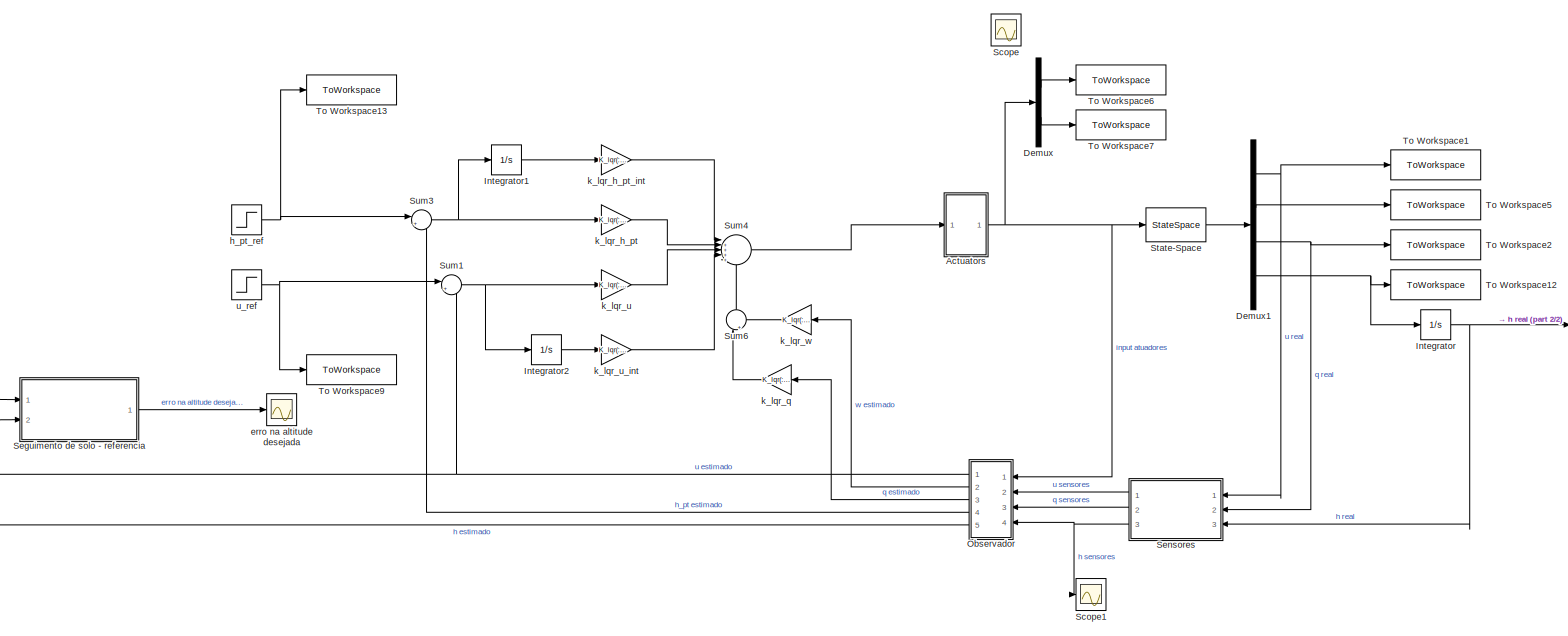
[diagram: root canvas - part 1/2, most of the canvas]
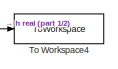
[diagram: root canvas - part 2/2, middle right region]
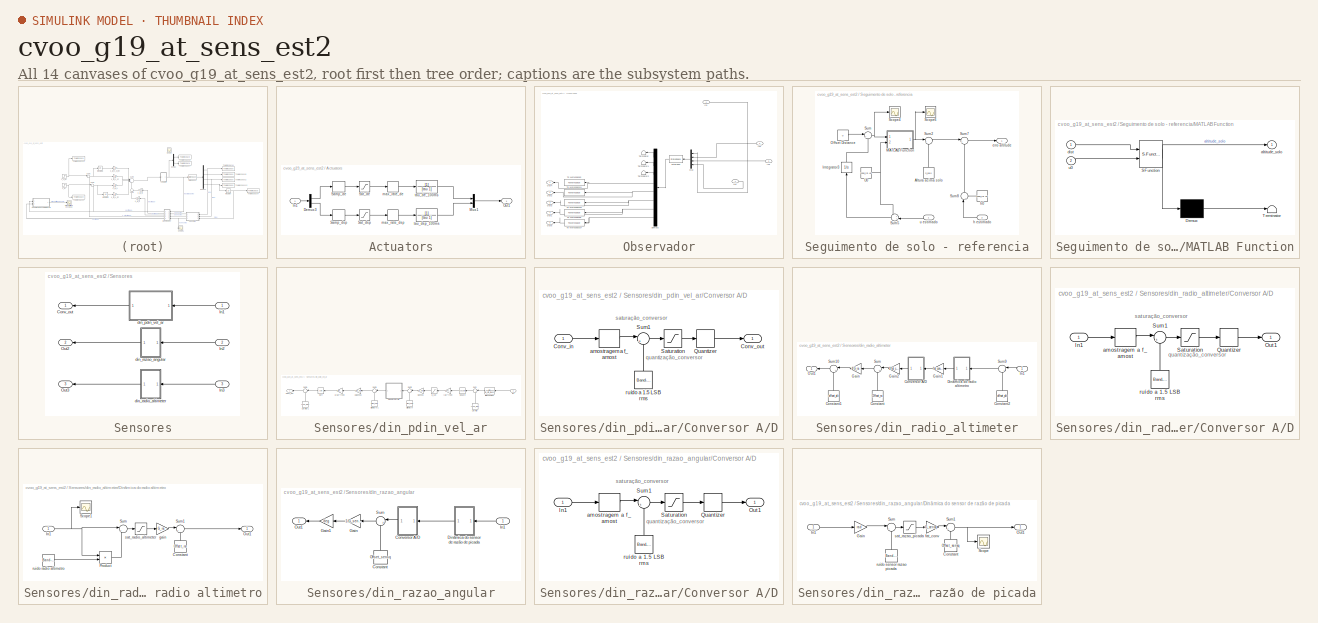
[diagram: thumbnail index - all 14 canvases of the model, root first then tree order]
MODEL cvoo_g19_at_sens_est2
KIND model
BLOCK [SubSystem] Actuators
  Ports = [1, 1]
  RequestExecContextInheritance = off
  SID = 88
BLOCK [RateLimiter] Actuators/ max_rate_de
  FallingSlewLimit = -vel_max_at*deg
  RisingSlewLimit = vel_max_at*deg
  SID = 90
  SampleTimeMode = inherited
BLOCK [RateLimiter] Actuators/ max_rate_dsp
  FallingSlewLimit = -vel_max_at*deg
  RisingSlewLimit = vel_max_at*deg
  SID = 91
  SampleTimeMode = inherited
BLOCK [Demux] Actuators/Demux3
  Outputs = 2
  Ports = [1, 2]
  SID = 92
BLOCK [Inport] Actuators/In1
  SID = 89
BLOCK [Mux] Actuators/Mux1
  DisplayOption = bar
  Inputs = 2
  Ports = [2, 1]
  SID = 93
BLOCK [Outport] Actuators/Out1
  SID = 104
BLOCK [ZeroOrderHold] Actuators/Samp_de
  SID = 94
  SampleTime = 1/f_amost
BLOCK [ZeroOrderHold] Actuators/Samp_dsp
  SID = 95
  SampleTime = 1/f_amost
BLOCK [Saturate] Actuators/Sat_de
  LowerLimit = max_deflec.demin
  SID = 96
  UpperLimit = max_deflec.demax
BLOCK [Saturate] Actuators/Sat_dsp
  LowerLimit = 0
  SID = 97
  UpperLimit = max_deflec.spmax
BLOCK [TransferFcn] Actuators/tau_de_100ms
  Denominator = [tau 1]
  SID = 100
BLOCK [TransferFcn] Actuators/tau_dsp_100ms
  Denominator = [tau 1]
  SID = 101
BLOCK [Demux] Demux
  Outputs = 2
  Ports = [1, 2]
  SID = 48
BLOCK [Demux] Demux1
  Ports = [1, 4]
  SID = 3
BLOCK [Integrator] Integrator
  Ports = [1, 1]
  SID = 60
BLOCK [Integrator] Integrator1
  Ports = [1, 1]
  SID = 84
BLOCK [Integrator] Integrator2
  Ports = [1, 1]
  SID = 86
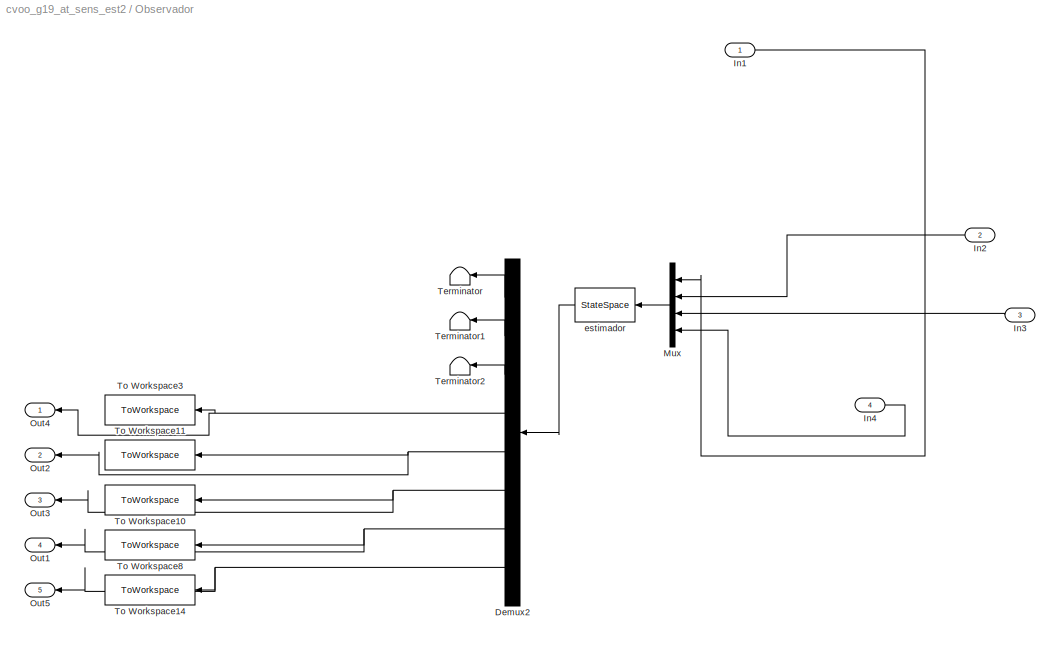
BLOCK [SubSystem] Observador
  NameLocation = top
  Ports = [4, 5]
  RequestExecContextInheritance = off
  SID = 330
BLOCK [Demux] Observador/Demux2
  NameLocation = top
  Outputs = 8
  Ports = [1, 8]
  SID = 234
BLOCK [Inport] Observador/In1
  SID = 331
BLOCK [Inport] Observador/In2
  Port = 2
  SID = 332
BLOCK [Inport] Observador/In3
  Port = 3
  SID = 333
BLOCK [Inport] Observador/In4
  Port = 4
  SID = 334
BLOCK [Mux] Observador/Mux
  DisplayOption = bar
  NameLocation = top
  Ports = [4, 1]
  SID = 233
BLOCK [Outport] Observador/Out1
  NameLocation = top
  Port = 4
  SID = 335
BLOCK [Outport] Observador/Out2
  Port = 2
  SID = 336
BLOCK [Outport] Observador/Out3
  Port = 3
  SID = 337
BLOCK [Outport] Observador/Out4
  NameLocation = top
  SID = 338
BLOCK [Outport] Observador/Out5
  NameLocation = top
  Port = 5
  SID = 339
BLOCK [Terminator] Observador/Terminator
  NameLocation = top
  SID = 240
BLOCK [Terminator] Observador/Terminator1
  NameLocation = top
  SID = 241
BLOCK [Terminator] Observador/Terminator2
  NameLocation = top
  SID = 242
BLOCK [ToWorkspace] Observador/To Workspace10
  FixptAsFi = on
  MaxDataPoints = inf
  NameLocation = top
  Ports = [1]
  SID = 237
  SampleTime = -1
  VariableName = q_e
BLOCK [ToWorkspace] Observador/To Workspace11
  FixptAsFi = on
  MaxDataPoints = inf
  NameLocation = top
  Ports = [1]
  SID = 238
  SampleTime = -1
  VariableName = w_e
BLOCK [ToWorkspace] Observador/To Workspace14
  FixptAsFi = on
  MaxDataPoints = inf
  NameLocation = top
  Ports = [1]
  SID = 239
  SampleTime = -1
  VariableName = h_e
BLOCK [ToWorkspace] Observador/To Workspace3
  FixptAsFi = on
  MaxDataPoints = inf
  NameLocation = top
  Ports = [1]
  SID = 235
  SampleTime = -1
  VariableName = u_e
BLOCK [ToWorkspace] Observador/To Workspace8
  FixptAsFi = on
  MaxDataPoints = inf
  NameLocation = top
  Ports = [1]
  SID = 236
  SampleTime = -1
  VariableName = h_pt_e
BLOCK [StateSpace] Observador/estimador
  A = ae
  B = be
  C = ce
  D = de
  InitialCondition = x0_e
  NameLocation = top
  Ports = [1, 1]
  SID = 232
BLOCK [Scope] Scope
  Floating = off
  IOType = viewer
  NumInputPorts = 1
  Ports = []
  SID = 46
  ScopeSpecificationString = Simulink.scopes.TimeScopeBlockCfg('CurrentConfiguration', extmgr.ConfigurationSet(extmgr.Configuration('Core','General UI',true),extmgr.Configuration('Core','Source UI',true),extmgr.Configuration('Sources','WiredSimulink',true),extmgr.Configuration('Visuals','Time Domain',true,'SerializedDisplays',{struct('MinYLimReal','-0.52541','MaxYLimReal','2.48927','YLabelReal','','MinYLimMag','0.00000','MaxY...<+1359ch>
BLOCK [Scope] Scope1
  Floating = off
  NumInputPorts = 1
  Ports = [1]
  SID = 368
  ScopeSpecificationString = Simulink.scopes.TimeScopeBlockCfg('CurrentConfiguration', extmgr.ConfigurationSet(extmgr.Configuration('Core','General UI',true),extmgr.Configuration('Core','Source UI',true),extmgr.Configuration('Sources','WiredSimulink',true,'DataLoggingVariableName','ScopeData1'),extmgr.Configuration('Visuals','Time Domain',true,'SerializedDisplays',{struct('MinYLimReal','-93.52743','MaxYLimReal','23.81425','YL...<+1375ch>
BLOCK [SubSystem] Seguimento de solo - referencia
  Ports = [2, 1]
  RequestExecContextInheritance = off
  SID = 347
BLOCK [Constant] Seguimento de solo - referencia/Altura acima solo
  NameLocation = right
  SID = 219
  Value = h_solo
BLOCK [Integrator] Seguimento de solo - referencia/Integrator3
  NameLocation = right
  Ports = [1, 1]
  SID = 213
BLOCK [SubSystem] Seguimento de solo - referencia/MATLAB Function
  ErrorFcn = Stateflow.Translate.translate
  PermitHierarchicalResolution = ExplicitOnly
  Ports = [2, 1]
  RequestExecContextInheritance = off
  SFBlockType = MATLAB Function
  SID = 211
  TreatAsAtomicUnit = on
BLOCK [Demux] Seguimento de solo - referencia/MATLAB Function/ Demux 
  Outputs = 1
  Ports = [1, 1]
  SID = 211::33
BLOCK [S-Function] Seguimento de solo - referencia/MATLAB Function/ SFunction 
  EnableBusSupport = on
  FunctionName = sf_sfun
  PortCounts = [2 2]
  Ports = [2, 2]
  SFcnIsStateOwnerBlock = off
  SFunctionDeploymentMode = off
  SID = 211::32
  Tag = Stateflow S-Function 2
BLOCK [Terminator] Seguimento de solo - referencia/MATLAB Function/ Terminator 
  SID = 211::34
BLOCK [Outport] Seguimento de solo - referencia/MATLAB Function/altitude_solo
  SID = 211::5
BLOCK [Inport] Seguimento de solo - referencia/MATLAB Function/dist
  SID = 211::1
BLOCK [Inport] Seguimento de solo - referencia/MATLAB Function/u0
  Port = 2
  SID = 211::25
BLOCK [Constant] Seguimento de solo - referencia/Offset Distance
  SID = 212
  Value = 0
BLOCK [Scope] Seguimento de solo - referencia/Scope4
  Floating = off
  NumInputPorts = 1
  Ports = [1]
  SID = 224
  ScopeSpecificationString = Simulink.scopes.TimeScopeBlockCfg('CurrentConfiguration', extmgr.ConfigurationSet(extmgr.Configuration('Core','General UI',true),extmgr.Configuration('Core','Source UI',true),extmgr.Configuration('Sources','WiredSimulink',true,'DataLoggingVariableName','ScopeData2'),extmgr.Configuration('Visuals','Time Domain',true,'SerializedDisplays',{struct('MinYLimReal','-437.03217','MaxYLimReal','3933.28956',...<+1380ch>
BLOCK [Scope] Seguimento de solo - referencia/Scope6
  Floating = off
  NumInputPorts = 1
  Ports = [1]
  SID = 229
  ScopeSpecificationString = Simulink.scopes.TimeScopeBlockCfg('CurrentConfiguration', extmgr.ConfigurationSet(extmgr.Configuration('Core','General UI',true),extmgr.Configuration('Core','Source UI',true),extmgr.Configuration('Sources','WiredSimulink',true,'DataLoggingVariableName','ScopeData4'),extmgr.Configuration('Visuals','Time Domain',true,'SerializedDisplays',{struct('MinYLimReal','-21.25299','MaxYLimReal','191.27687','Y...<+1417ch>
BLOCK [Sum] Seguimento de solo - referencia/Sum
  Inputs = |++
  Ports = [2, 1]
  SID = 222
BLOCK [Sum] Seguimento de solo - referencia/Sum2
  Inputs = |++
  Ports = [2, 1]
  SID = 217
BLOCK [Sum] Seguimento de solo - referencia/Sum5
  Inputs = ++|
  NameLocation = top
  Ports = [2, 1]
  SID = 225
BLOCK [Sum] Seguimento de solo - referencia/Sum7
  Inputs = |+-
  Ports = [2, 1]
  SID = 226
BLOCK [Sum] Seguimento de solo - referencia/Sum8
  Inputs = |++
  NameLocation = right
  Ports = [2, 1]
  SID = 231
BLOCK [Constant] Seguimento de solo - referencia/U0
  SID = 216
  Value = cond_ini.u0
BLOCK [Outport] Seguimento de solo - referencia/erro altitude
  SID = 350
BLOCK [Inport] Seguimento de solo - referencia/h estimado
  Port = 2
  SID = 349
BLOCK [Constant] Seguimento de solo - referencia/h0
  NameLocation = top
  SID = 230
  Value = cond_ini.h0
BLOCK [Inport] Seguimento de solo - referencia/u estimado
  NameLocation = top
  SID = 348
BLOCK [SubSystem] Sensores
  NameLocation = top
  Ports = [3, 3]
  RequestExecContextInheritance = off
  SID = 340
BLOCK [Outport] Sensores/Conv_out
  SID = 344
BLOCK [Inport] Sensores/In1
  NameLocation = top
  SID = 341
BLOCK [Inport] Sensores/In2
  NameLocation = top
  Port = 2
  SID = 342
BLOCK [Inport] Sensores/In3
  NameLocation = top
  Port = 3
  SID = 343
BLOCK [Outport] Sensores/Out2
  Port = 2
  SID = 345
BLOCK [Outport] Sensores/Out3
  Port = 3
  SID = 346
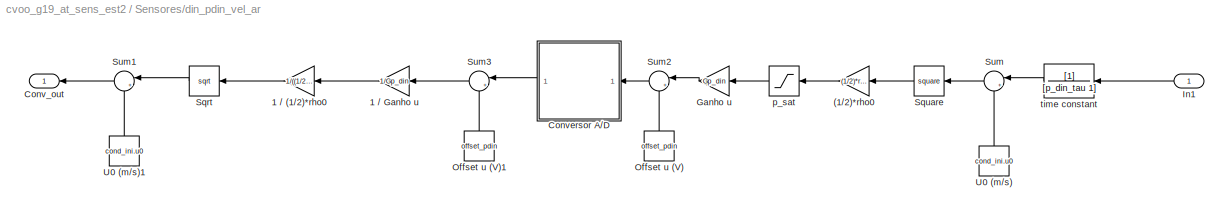
BLOCK [SubSystem] Sensores/din_pdin_vel_ar
  NameLocation = top
  Ports = [1, 1]
  RequestExecContextInheritance = off
  SID = 187
BLOCK [TransferFcn] Sensores/din_pdin_vel_ar/ time constant
  Denominator = [p_din_tau 1]
  NameLocation = top
  SID = 184
BLOCK [Gain] Sensores/din_pdin_vel_ar/(1//2)*rho0
  Gain = (1/2)*rho0
  NameLocation = top
  SID = 170
BLOCK [Gain] Sensores/din_pdin_vel_ar/1 // (1//2)*rho0
  Gain = 1/((1/2)*rho0)
  NameLocation = top
  SID = 201
BLOCK [Gain] Sensores/din_pdin_vel_ar/1 // Ganho u
  Gain = 1/Gp_din
  NameLocation = top
  SID = 202
BLOCK [Outport] Sensores/din_pdin_vel_ar/Conv_out
  NameLocation = top
  SID = 189
BLOCK [SubSystem] Sensores/din_pdin_vel_ar/Conversor A//D
  NameLocation = top
  Ports = [1, 1]
  RequestExecContextInheritance = off
  SID = 190
BLOCK [Inport] Sensores/din_pdin_vel_ar/Conversor A//D/Conv_in
  SID = 191
BLOCK [Outport] Sensores/din_pdin_vel_ar/Conversor A//D/Conv_out
  SID = 198
BLOCK [Quantizer] Sensores/din_pdin_vel_ar/Conversor A//D/Quantizer
  QuantizationInterval = fat_quant
  SID = 192
BLOCK [Saturate] Sensores/din_pdin_vel_ar/Conversor A//D/Saturation
  LowerLimit = conv_min
  SID = 193
  UpperLimit = conv_max
BLOCK [Sum] Sensores/din_pdin_vel_ar/Conversor A//D/Sum1
  Inputs = |++
  Ports = [2, 1]
  SID = 195
BLOCK [ZeroOrderHold] Sensores/din_pdin_vel_ar/Conversor A//D/amostragem a f_amost
  SID = 196
  SampleTime = 1/f_amost
BLOCK [Reference] Sensores/din_pdin_vel_ar/Conversor A//D/ruído a 1.5 LSB rms  REF=simulink/Sources/Band-Limited\nWhite Noise
  Cov = [conv_rms^2/f_amost]
  NameLocation = right
  Ports = [0, 1]
  RTWMemSecDataConstants = Inherit from model
  RTWMemSecDataInternal = Inherit from model
  RTWMemSecDataParameters = Inherit from model
  RTWMemSecFuncExecute = Inherit from model
  RTWMemSecFuncInitTerm = Inherit from model
  SID = 197
  SourceBlock = simulink/Sources/Band-Limited\nWhite Noise
  SourceProductBaseCode = SL
  SourceType = Band-Limited White Noise.
  Ts = 1/f_amost
  VectorParams1D = on
  seed = [23341]
BLOCK [Gain] Sensores/din_pdin_vel_ar/Ganho u
  Gain = Gp_din
  NameLocation = top
  SID = 179
BLOCK [Inport] Sensores/din_pdin_vel_ar/In1
  NameLocation = top
  SID = 188
BLOCK [Constant] Sensores/din_pdin_vel_ar/Offset u (V)
  NameLocation = right
  SID = 180
  Value = offset_pdin
BLOCK [Constant] Sensores/din_pdin_vel_ar/Offset u (V)1
  NameLocation = right
  SID = 203
  Value = offset_pdin
BLOCK [Sqrt] Sensores/din_pdin_vel_ar/Sqrt
  NameLocation = top
  SID = 204
BLOCK [Math] Sensores/din_pdin_vel_ar/Square
  NameLocation = top
  Operator = square
  Ports = [1, 1]
  SID = 181
  SignedPower = on
BLOCK [Sum] Sensores/din_pdin_vel_ar/Sum
  Inputs = |++
  NameLocation = top
  Ports = [2, 1]
  SID = 182
BLOCK [Sum] Sensores/din_pdin_vel_ar/Sum1
  Inputs = |+-
  NameLocation = top
  Ports = [2, 1]
  SID = 205
BLOCK [Sum] Sensores/din_pdin_vel_ar/Sum2
  Inputs = |++
  NameLocation = top
  Ports = [2, 1]
  SID = 183
BLOCK [Sum] Sensores/din_pdin_vel_ar/Sum3
  Inputs = |+-
  NameLocation = top
  Ports = [2, 1]
  SID = 206
BLOCK [Constant] Sensores/din_pdin_vel_ar/U0 (m//s)
  NameLocation = right
  SID = 185
  Value = cond_ini.u0
BLOCK [Constant] Sensores/din_pdin_vel_ar/U0 (m//s)1
  NameLocation = right
  SID = 207
  Value = cond_ini.u0
BLOCK [Saturate] Sensores/din_pdin_vel_ar/p_sat
  LowerLimit = pdin_min
  NameLocation = top
  SID = 186
  UpperLimit = pdin_max
BLOCK [SubSystem] Sensores/din_radio_altimeter
  Ports = [1, 1]
  RequestExecContextInheritance = off
  SID = 273
BLOCK [Constant] Sensores/din_radio_altimeter/Constant
  NameLocation = right
  SID = 275
  Value = Offset_ra
BLOCK [Constant] Sensores/din_radio_altimeter/Constant1
  NameLocation = right
  SID = 311
  Value = offset_alt
BLOCK [Constant] Sensores/din_radio_altimeter/Constant2
  NameLocation = right
  SID = 310
  Value = offset_alt
BLOCK [SubSystem] Sensores/din_radio_altimeter/Conversor A//D
  NameLocation = top
  Ports = [1, 1]
  RequestExecContextInheritance = off
  SID = 276
BLOCK [Inport] Sensores/din_radio_altimeter/Conversor A//D/In1
  SID = 277
BLOCK [Outport] Sensores/din_radio_altimeter/Conversor A//D/Out1
  SID = 284
BLOCK [Quantizer] Sensores/din_radio_altimeter/Conversor A//D/Quantizer
  QuantizationInterval = fat_quant
  SID = 278
BLOCK [Saturate] Sensores/din_radio_altimeter/Conversor A//D/Saturation
  LowerLimit = conv_min
  SID = 279
  UpperLimit = conv_max
BLOCK [Sum] Sensores/din_radio_altimeter/Conversor A//D/Sum1
  Inputs = |++
  Ports = [2, 1]
  SID = 281
BLOCK [ZeroOrderHold] Sensores/din_radio_altimeter/Conversor A//D/amostragem a f_amost
  SID = 282
  SampleTime = 1/f_amost
BLOCK [Reference] Sensores/din_radio_altimeter/Conversor A//D/ruído a 1.5 LSB rms  REF=simulink/Sources/Band-Limited\nWhite Noise
  Cov = [conv_rms^2/f_amost]
  NameLocation = right
  Ports = [0, 1]
  RTWMemSecDataConstants = Inherit from model
  RTWMemSecDataInternal = Inherit from model
  RTWMemSecDataParameters = Inherit from model
  RTWMemSecFuncExecute = Inherit from model
  RTWMemSecFuncInitTerm = Inherit from model
  SID = 283
  SourceBlock = simulink/Sources/Band-Limited\nWhite Noise
  SourceProductBaseCode = SL
  SourceType = Band-Limited White Noise.
  Ts = 1/f_amost
  VectorParams1D = on
  seed = [23341]
BLOCK [SubSystem] Sensores/din_radio_altimeter/Dinâmica do radio altimetro
  Ports = [1, 1]
  RequestExecContextInheritance = off
  SID = 287
BLOCK [Constant] Sensores/din_radio_altimeter/Dinâmica do radio altimetro/Constant
  NameLocation = right
  SID = 289
  Value = Offset_ra
BLOCK [Inport] Sensores/din_radio_altimeter/Dinâmica do radio altimetro/In1
  SID = 288
BLOCK [Outport] Sensores/din_radio_altimeter/Dinâmica do radio altimetro/Out1
  SID = 295
BLOCK [Product] Sensores/din_radio_altimeter/Dinâmica do radio altimetro/Product
  Ports = [2, 1]
  SID = 370
BLOCK [Scope] Sensores/din_radio_altimeter/Dinâmica do radio altimetro/Scope1
  Floating = off
  NumInputPorts = 1
  Ports = [1]
  SID = 306
  ScopeSpecificationString = Simulink.scopes.TimeScopeBlockCfg('CurrentConfiguration', extmgr.ConfigurationSet(extmgr.Configuration('Core','General UI',true),extmgr.Configuration('Core','Source UI',true),extmgr.Configuration('Sources','WiredSimulink',true,'DataLoggingVariableName','ScopeData6'),extmgr.Configuration('Visuals','Time Domain',true,'SerializedDisplays',{struct('MinYLimReal','112.81721','MaxYLimReal','209.79696','Y...<+1376ch>
BLOCK [Sum] Sensores/din_radio_altimeter/Dinâmica do radio altimetro/Sum
  Inputs = |++
  Ports = [2, 1]
  SID = 290
BLOCK [Sum] Sensores/din_radio_altimeter/Dinâmica do radio altimetro/Sum1
  Inputs = |++
  Ports = [2, 1]
  SID = 291
BLOCK [Gain] Sensores/din_radio_altimeter/Dinâmica do radio altimetro/gain
  Gain = G_ra
  SID = 292
BLOCK [Reference] Sensores/din_radio_altimeter/Dinâmica do radio altimetro/ruido radio altimetro  REF=simulink/Sources/Band-Limited\nWhite Noise
  Cov = [ra_rms^2/f_amost]
  Ports = [0, 1]
  RTWMemSecDataConstants = Inherit from model
  RTWMemSecDataInternal = Inherit from model
  RTWMemSecDataParameters = Inherit from model
  RTWMemSecFuncExecute = Inherit from model
  RTWMemSecFuncInitTerm = Inherit from model
  SID = 293
  SourceBlock = simulink/Sources/Band-Limited\nWhite Noise
  SourceProductBaseCode = SL
  SourceType = Band-Limited White Noise.
  Ts = 1/f_amost
  VectorParams1D = on
  seed = [23341]
BLOCK [Saturate] Sensores/din_radio_altimeter/Dinâmica do radio altimetro/sat_radio_altimeter
  LowerLimit = h_ra_min
  NameLocation = top
  SID = 294
  UpperLimit = h_ra_max
BLOCK [Gain] Sensores/din_radio_altimeter/Gain
  Gain = 1/G_ra
  NameLocation = top
  SID = 296
BLOCK [Gain] Sensores/din_radio_altimeter/Gain1
  Gain = fat_conv_ra
  NameLocation = top
  SID = 317
BLOCK [Gain] Sensores/din_radio_altimeter/Gain2
  Gain = 1/fat_conv_ra
  NameLocation = top
  SID = 318
BLOCK [Inport] Sensores/din_radio_altimeter/In1
  NameLocation = top
  SID = 274
BLOCK [Outport] Sensores/din_radio_altimeter/Out1
  SID = 299
BLOCK [Sum] Sensores/din_radio_altimeter/Sum
  Inputs = |+-
  NameLocation = top
  Ports = [2, 1]
  SID = 298
BLOCK [Sum] Sensores/din_radio_altimeter/Sum10
  Inputs = |+-
  NameLocation = top
  Ports = [2, 1]
  SID = 312
BLOCK [Sum] Sensores/din_radio_altimeter/Sum9
  Inputs = |++
  NameLocation = top
  Ports = [2, 1]
  SID = 309
BLOCK [SubSystem] Sensores/din_razao_angular
  Ports = [1, 1]
  RequestExecContextInheritance = off
  SID = 122
BLOCK [Constant] Sensores/din_razao_angular/Constant
  NameLocation = right
  SID = 156
  Value = Offset_sensq
BLOCK [SubSystem] Sensores/din_razao_angular/Conversor A//D
  NameLocation = top
  Ports = [1, 1]
  RequestExecContextInheritance = off
  SID = 138
BLOCK [Inport] Sensores/din_razao_angular/Conversor A//D/In1
  SID = 139
BLOCK [Outport] Sensores/din_razao_angular/Conversor A//D/Out1
  SID = 140
BLOCK [Quantizer] Sensores/din_razao_angular/Conversor A//D/Quantizer
  QuantizationInterval = fat_quant
  SID = 142
BLOCK [Saturate] Sensores/din_razao_angular/Conversor A//D/Saturation
  LowerLimit = conv_min
  SID = 141
  UpperLimit = conv_max
BLOCK [Sum] Sensores/din_razao_angular/Conversor A//D/Sum1
  Inputs = |++
  Ports = [2, 1]
  SID = 137
BLOCK [ZeroOrderHold] Sensores/din_razao_angular/Conversor A//D/amostragem a f_amost
  SID = 135
  SampleTime = 1/f_amost
BLOCK [Reference] Sensores/din_razao_angular/Conversor A//D/ruído a 1.5 LSB rms  REF=simulink/Sources/Band-Limited\nWhite Noise
  Cov = [conv_rms^2/f_amost]
  NameLocation = right
  Ports = [0, 1]
  RTWMemSecDataConstants = Inherit from model
  RTWMemSecDataInternal = Inherit from model
  RTWMemSecDataParameters = Inherit from model
  RTWMemSecFuncExecute = Inherit from model
  RTWMemSecFuncInitTerm = Inherit from model
  SID = 136
  SourceBlock = simulink/Sources/Band-Limited\nWhite Noise
  SourceProductBaseCode = SL
  SourceType = Band-Limited White Noise.
  Ts = 1/f_amost
  VectorParams1D = on
  seed = [23341]
BLOCK [SubSystem] Sensores/din_razao_angular/Dinâmica do sensor de razão de picada
  Ports = [1, 1]
  RequestExecContextInheritance = off
  SID = 147
BLOCK [Constant] Sensores/din_razao_angular/Dinâmica do sensor de razão de picada/Constant
  NameLocation = right
  SID = 146
  Value = Offset_sensq
BLOCK [Gain] Sensores/din_razao_angular/Dinâmica do sensor de razão de picada/Gain
  Gain = rad
  NameLocation = top
  SID = 120
BLOCK [Inport] Sensores/din_razao_angular/Dinâmica do sensor de razão de picada/In1
  SID = 148
BLOCK [Outport] Sensores/din_razao_angular/Dinâmica do sensor de razão de picada/Out1
  SID = 149
BLOCK [Scope] Sensores/din_razao_angular/Dinâmica do sensor de razão de picada/Scope
  Floating = off
  NumInputPorts = 1
  Ports = [1]
  SID = 167
  ScopeSpecificationString = Simulink.scopes.TimeScopeBlockCfg('CurrentConfiguration', extmgr.ConfigurationSet(extmgr.Configuration('Core','General UI',true),extmgr.Configuration('Core','Source UI',true),extmgr.Configuration('Sources','WiredSimulink',true,'DataLoggingVariableName','ScopeData3'),extmgr.Configuration('Visuals','Time Domain',true),extmgr.Configuration('Tools','Plot Navigation',true),extmgr.Configuration('Tools',...<+40ch>
BLOCK [Sum] Sensores/din_razao_angular/Dinâmica do sensor de razão de picada/Sum
  Inputs = |++
  Ports = [2, 1]
  SID = 126
BLOCK [Sum] Sensores/din_razao_angular/Dinâmica do sensor de razão de picada/Sum1
  Inputs = |++
  Ports = [2, 1]
  SID = 145
BLOCK [Gain] Sensores/din_razao_angular/Dinâmica do sensor de razão de picada/fat_conv
  Gain = G_sensq
  SID = 125
BLOCK [Reference] Sensores/din_razao_angular/Dinâmica do sensor de razão de picada/ruído sensor razao picada  REF=simulink/Sources/Band-Limited\nWhite Noise
  Cov = [rms_sensq^2/f_amost]
  NameLocation = right
  Ports = [0, 1]
  RTWMemSecDataConstants = Inherit from model
  RTWMemSecDataInternal = Inherit from model
  RTWMemSecDataParameters = Inherit from model
  RTWMemSecFuncExecute = Inherit from model
  RTWMemSecFuncInitTerm = Inherit from model
  SID = 127
  SourceBlock = simulink/Sources/Band-Limited\nWhite Noise
  SourceProductBaseCode = SL
  SourceType = Band-Limited White Noise.
  Ts = 1/f_amost
  VectorParams1D = on
  seed = [23341]
BLOCK [Saturate] Sensores/din_razao_angular/Dinâmica do sensor de razão de picada/sat_razao_picada
  LowerLimit = q_min_sensq
  NameLocation = top
  SID = 121
  UpperLimit = q_max_sensq
BLOCK [Gain] Sensores/din_razao_angular/Gain
  Gain = 1/G_sensq
  NameLocation = top
  SID = 150
BLOCK [Gain] Sensores/din_razao_angular/Gain1
  Gain = deg
  NameLocation = top
  SID = 157
BLOCK [Inport] Sensores/din_razao_angular/In1
  NameLocation = top
  SID = 123
BLOCK [Outport] Sensores/din_razao_angular/Out1
  SID = 124
BLOCK [Sum] Sensores/din_razao_angular/Sum
  Inputs = |+-
  NameLocation = top
  Ports = [2, 1]
  SID = 155
BLOCK [StateSpace] State-Space
  A = a_h_pt
  B = b_h_pt
  C = c_h_pt
  D = d_h_pt
  InitialCondition = x0
  Ports = [1, 1]
  SID = 1
BLOCK [Sum] Sum1
  Inputs = |+-
  Ports = [2, 1]
  SID = 62
BLOCK [Sum] Sum3
  Inputs = |+-
  Ports = [2, 1]
  SID = 36
BLOCK [Sum] Sum4
  Inputs = |++++-
  Ports = [5, 1]
  SID = 41
BLOCK [Sum] Sum6
  Inputs = |++
  NameLocation = right
  Ports = [2, 1]
  SID = 43
BLOCK [ToWorkspace] To Workspace1
  FixptAsFi = on
  MaxDataPoints = inf
  Ports = [1]
  SID = 11
  SampleTime = -1
  VariableName = u
BLOCK [ToWorkspace] To Workspace12
  FixptAsFi = on
  MaxDataPoints = inf
  Ports = [1]
  SID = 81
  SampleTime = -1
  VariableName = h_pt
BLOCK [ToWorkspace] To Workspace13
  FixptAsFi = on
  MaxDataPoints = inf
  Ports = [1]
  SID = 82
  SampleTime = -1
  VariableName = h_pt_ref
BLOCK [ToWorkspace] To Workspace2
  FixptAsFi = on
  MaxDataPoints = inf
  Ports = [1]
  SID = 5
  SampleTime = -1
  VariableName = q
BLOCK [ToWorkspace] To Workspace4
  FixptAsFi = on
  MaxDataPoints = inf
  Ports = [1]
  SID = 7
  SampleTime = -1
  VariableName = h
BLOCK [ToWorkspace] To Workspace5
  FixptAsFi = on
  MaxDataPoints = inf
  Ports = [1]
  SID = 12
  SampleTime = -1
  VariableName = w
BLOCK [ToWorkspace] To Workspace6
  FixptAsFi = on
  MaxDataPoints = inf
  Ports = [1]
  SID = 47
  SampleTime = -1
  SaveFormat = Structure With Time
  VariableName = de
BLOCK [ToWorkspace] To Workspace7
  FixptAsFi = on
  MaxDataPoints = inf
  Ports = [1]
  SID = 49
  SampleTime = -1
  SaveFormat = Structure With Time
  VariableName = dsp
BLOCK [ToWorkspace] To Workspace9
  FixptAsFi = on
  MaxDataPoints = inf
  Ports = [1]
  SID = 65
  SampleTime = -1
  VariableName = u_ref
BLOCK [Scope] erro na altitude desejada
  Floating = off
  NumInputPorts = 1
  Ports = [1]
  SID = 227
  ScopeSpecificationString = Simulink.scopes.TimeScopeBlockCfg('CurrentConfiguration', extmgr.ConfigurationSet(extmgr.Configuration('Core','General UI',true),extmgr.Configuration('Core','Source UI',true),extmgr.Configuration('Sources','WiredSimulink',true,'DataLoggingVariableName','ScopeData1'),extmgr.Configuration('Visuals','Time Domain',true,'SerializedDisplays',{struct('MinYLimReal','-22.77155','MaxYLimReal','277.53603','Y...<+1405ch>
BLOCK [Step] h_pt_ref
  After = h_pt_ref
  SID = 20
  SampleTime = 0
  Time = 10
  VectorParams1D = off
BLOCK [Gain] k_lqr_h_pt
  Gain = K_lqr(:,4)
  Multiplication = Matrix(K*u)
  SID = 40
BLOCK [Gain] k_lqr_h_pt_int
  Gain = K_lqr(:,6)
  Multiplication = Matrix(K*u)
  SID = 85
BLOCK [Gain] k_lqr_q
  Gain = K_lqr(:,3)
  Multiplication = Matrix(K*u)
  NameLocation = top
  SID = 39
BLOCK [Gain] k_lqr_u
  Gain = K_lqr(:,1)
  Multiplication = Matrix(K*u)
  SID = 37
BLOCK [Gain] k_lqr_u_int
  Gain = K_lqr(:,5)
  Multiplication = Matrix(K*u)
  SID = 87
BLOCK [Gain] k_lqr_w
  Gain = K_lqr(:,2)
  Multiplication = Matrix(K*u)
  NameLocation = top
  SID = 38
BLOCK [Step] u_ref
  After = u_ref
  SID = 221
  SampleTime = 0
  Time = 50
  VectorParams1D = off
ANNOTATION Sensores/din_pdin_vel_ar/Conversor A//D: quantização_conversor
ANNOTATION Sensores/din_pdin_vel_ar/Conversor A//D: saturação_conversor
ANNOTATION Sensores/din_radio_altimeter/Conversor A//D: quantização_conversor
ANNOTATION Sensores/din_radio_altimeter/Conversor A//D: saturação_conversor
ANNOTATION Sensores/din_razao_angular/Conversor A//D: quantização_conversor
ANNOTATION Sensores/din_razao_angular/Conversor A//D: saturação_conversor
LINE Actuators/ max_rate_de:1 -> Actuators/tau_de_100ms:1
LINE Actuators/ max_rate_dsp:1 -> Actuators/tau_dsp_100ms:1
LINE Actuators/Demux3:1 -> Actuators/Samp_de:1
LINE Actuators/Demux3:2 -> Actuators/Samp_dsp:1
LINE Actuators/In1:1 -> Actuators/Demux3:1
LINE Actuators/Mux1:1 -> Actuators/Out1:1
LINE Actuators/Samp_de:1 -> Actuators/Sat_de:1
LINE Actuators/Samp_dsp:1 -> Actuators/Sat_dsp:1
LINE Actuators/Sat_de:1 -> Actuators/ max_rate_de:1
LINE Actuators/Sat_dsp:1 -> Actuators/ max_rate_dsp:1
LINE Actuators/tau_de_100ms:1 -> Actuators/Mux1:1
LINE Actuators/tau_dsp_100ms:1 -> Actuators/Mux1:2
NET Actuators:1 -> Demux:1, Observador:1, State-Space:1
NET Demux1:1 -> Sensores:1, To Workspace1:1
LINE Demux1:2 -> To Workspace5:1
NET Demux1:3 -> Sensores:2, To Workspace2:1
NET Demux1:4 -> Integrator:1, To Workspace12:1
LINE Demux:1 -> To Workspace6:1
LINE Demux:2 -> To Workspace7:1
LINE Integrator1:1 -> k_lqr_h_pt_int:1
LINE Integrator2:1 -> k_lqr_u_int:1
NET Integrator:1 -> Sensores:3, To Workspace4:1
LINE Observador/Demux2:1 -> Observador/Terminator:1
LINE Observador/Demux2:2 -> Observador/Terminator1:1
LINE Observador/Demux2:3 -> Observador/Terminator2:1
NET Observador/Demux2:4 -> Observador/Out4:1, Observador/To Workspace3:1
NET Observador/Demux2:5 -> Observador/Out2:1, Observador/To Workspace11:1
NET Observador/Demux2:6 -> Observador/Out3:1, Observador/To Workspace10:1
NET Observador/Demux2:7 -> Observador/Out1:1, Observador/To Workspace8:1
NET Observador/Demux2:8 -> Observador/Out5:1, Observador/To Workspace14:1
LINE Observador/In1:1 -> Observador/Mux:1
LINE Observador/In2:1 -> Observador/Mux:2
LINE Observador/In3:1 -> Observador/Mux:3
LINE Observador/In4:1 -> Observador/Mux:4
LINE Observador/Mux:1 -> Observador/estimador:1
LINE Observador/estimador:1 -> Observador/Demux2:1
NET Observador:1 -> Seguimento de solo - referencia:1, Sum1:2
LINE Observador:2 -> k_lqr_w:1
LINE Observador:3 -> k_lqr_q:1
LINE Observador:4 -> Sum3:2
LINE Observador:5 -> Seguimento de solo - referencia:2
LINE Seguimento de solo - referencia/Altura acima solo:1 -> Seguimento de solo - referencia/Sum2:2
LINE Seguimento de solo - referencia/Integrator3:1 -> Seguimento de solo - referencia/Sum:2
LINE Seguimento de solo - referencia/MATLAB Function/ Demux :1 -> Seguimento de solo - referencia/MATLAB Function/ Terminator :1
LINE Seguimento de solo - referencia/MATLAB Function/ SFunction :1 -> Seguimento de solo - referencia/MATLAB Function/ Demux :1
LINE Seguimento de solo - referencia/MATLAB Function/ SFunction :2 -> Seguimento de solo - referencia/MATLAB Function/altitude_solo:1
LINE Seguimento de solo - referencia/MATLAB Function/dist:1 -> Seguimento de solo - referencia/MATLAB Function/ SFunction :1
LINE Seguimento de solo - referencia/MATLAB Function/u0:1 -> Seguimento de solo - referencia/MATLAB Function/ SFunction :2
NET Seguimento de solo - referencia/MATLAB Function:1 -> Seguimento de solo - referencia/Scope6:1, Seguimento de solo - referencia/Sum2:1
LINE Seguimento de solo - referencia/Offset Distance:1 -> Seguimento de solo - referencia/Sum:1
LINE Seguimento de solo - referencia/Sum2:1 -> Seguimento de solo - referencia/Sum7:1
LINE Seguimento de solo - referencia/Sum5:1 -> Seguimento de solo - referencia/Integrator3:1
LINE Seguimento de solo - referencia/Sum7:1 -> Seguimento de solo - referencia/erro altitude:1
LINE Seguimento de solo - referencia/Sum8:1 -> Seguimento de solo - referencia/Sum7:2
NET Seguimento de solo - referencia/Sum:1 -> Seguimento de solo - referencia/MATLAB Function:1, Seguimento de solo - referencia/Scope4:1
NET Seguimento de solo - referencia/U0:1 -> Seguimento de solo - referencia/MATLAB Function:2, Seguimento de solo - referencia/Sum5:1
LINE Seguimento de solo - referencia/h estimado:1 -> Seguimento de solo - referencia/Sum8:1
LINE Seguimento de solo - referencia/h0:1 -> Seguimento de solo - referencia/Sum8:2
LINE Seguimento de solo - referencia/u estimado:1 -> Seguimento de solo - referencia/Sum5:2
LINE Seguimento de solo - referencia:1 -> erro na altitude desejada:1
LINE Sensores/In1:1 -> Sensores/din_pdin_vel_ar:1
LINE Sensores/In2:1 -> Sensores/din_razao_angular:1
LINE Sensores/In3:1 -> Sensores/din_radio_altimeter:1
LINE Sensores/din_pdin_vel_ar/ time constant:1 -> Sensores/din_pdin_vel_ar/Sum:1
LINE Sensores/din_pdin_vel_ar/(1//2)*rho0:1 -> Sensores/din_pdin_vel_ar/p_sat:1
LINE Sensores/din_pdin_vel_ar/1 // (1//2)*rho0:1 -> Sensores/din_pdin_vel_ar/Sqrt:1
LINE Sensores/din_pdin_vel_ar/1 // Ganho u:1 -> Sensores/din_pdin_vel_ar/1 // (1//2)*rho0:1
LINE Sensores/din_pdin_vel_ar/Conversor A//D/Conv_in:1 -> Sensores/din_pdin_vel_ar/Conversor A//D/amostragem a f_amost:1
LINE Sensores/din_pdin_vel_ar/Conversor A//D/Quantizer:1 -> Sensores/din_pdin_vel_ar/Conversor A//D/Conv_out:1
LINE Sensores/din_pdin_vel_ar/Conversor A//D/Saturation:1 -> Sensores/din_pdin_vel_ar/Conversor A//D/Quantizer:1
LINE Sensores/din_pdin_vel_ar/Conversor A//D/Sum1:1 -> Sensores/din_pdin_vel_ar/Conversor A//D/Saturation:1
LINE Sensores/din_pdin_vel_ar/Conversor A//D/amostragem a f_amost:1 -> Sensores/din_pdin_vel_ar/Conversor A//D/Sum1:1
LINE Sensores/din_pdin_vel_ar/Conversor A//D/ruído a 1.5 LSB rms:1 -> Sensores/din_pdin_vel_ar/Conversor A//D/Sum1:2
LINE Sensores/din_pdin_vel_ar/Conversor A//D:1 -> Sensores/din_pdin_vel_ar/Sum3:1
LINE Sensores/din_pdin_vel_ar/Ganho u:1 -> Sensores/din_pdin_vel_ar/Sum2:1
LINE Sensores/din_pdin_vel_ar/In1:1 -> Sensores/din_pdin_vel_ar/ time constant:1
LINE Sensores/din_pdin_vel_ar/Offset u (V)1:1 -> Sensores/din_pdin_vel_ar/Sum3:2
LINE Sensores/din_pdin_vel_ar/Offset u (V):1 -> Sensores/din_pdin_vel_ar/Sum2:2
LINE Sensores/din_pdin_vel_ar/Sqrt:1 -> Sensores/din_pdin_vel_ar/Sum1:1
LINE Sensores/din_pdin_vel_ar/Square:1 -> Sensores/din_pdin_vel_ar/(1//2)*rho0:1
LINE Sensores/din_pdin_vel_ar/Sum1:1 -> Sensores/din_pdin_vel_ar/Conv_out:1
LINE Sensores/din_pdin_vel_ar/Sum2:1 -> Sensores/din_pdin_vel_ar/Conversor A//D:1
LINE Sensores/din_pdin_vel_ar/Sum3:1 -> Sensores/din_pdin_vel_ar/1 // Ganho u:1
LINE Sensores/din_pdin_vel_ar/Sum:1 -> Sensores/din_pdin_vel_ar/Square:1
LINE Sensores/din_pdin_vel_ar/U0 (m//s)1:1 -> Sensores/din_pdin_vel_ar/Sum1:2
LINE Sensores/din_pdin_vel_ar/U0 (m//s):1 -> Sensores/din_pdin_vel_ar/Sum:2
LINE Sensores/din_pdin_vel_ar/p_sat:1 -> Sensores/din_pdin_vel_ar/Ganho u:1
LINE Sensores/din_pdin_vel_ar:1 -> Sensores/Conv_out:1
LINE Sensores/din_radio_altimeter/Constant1:1 -> Sensores/din_radio_altimeter/Sum10:2
LINE Sensores/din_radio_altimeter/Constant2:1 -> Sensores/din_radio_altimeter/Sum9:2
LINE Sensores/din_radio_altimeter/Constant:1 -> Sensores/din_radio_altimeter/Sum:2
LINE Sensores/din_radio_altimeter/Conversor A//D/In1:1 -> Sensores/din_radio_altimeter/Conversor A//D/amostragem a f_amost:1
LINE Sensores/din_radio_altimeter/Conversor A//D/Quantizer:1 -> Sensores/din_radio_altimeter/Conversor A//D/Out1:1
LINE Sensores/din_radio_altimeter/Conversor A//D/Saturation:1 -> Sensores/din_radio_altimeter/Conversor A//D/Quantizer:1
LINE Sensores/din_radio_altimeter/Conversor A//D/Sum1:1 -> Sensores/din_radio_altimeter/Conversor A//D/Saturation:1
LINE Sensores/din_radio_altimeter/Conversor A//D/amostragem a f_amost:1 -> Sensores/din_radio_altimeter/Conversor A//D/Sum1:1
LINE Sensores/din_radio_altimeter/Conversor A//D/ruído a 1.5 LSB rms:1 -> Sensores/din_radio_altimeter/Conversor A//D/Sum1:2
LINE Sensores/din_radio_altimeter/Conversor A//D:1 -> Sensores/din_radio_altimeter/Gain2:1
LINE Sensores/din_radio_altimeter/Dinâmica do radio altimetro/Constant:1 -> Sensores/din_radio_altimeter/Dinâmica do radio altimetro/Sum1:2
NET Sensores/din_radio_altimeter/Dinâmica do radio altimetro/In1:1 -> Sensores/din_radio_altimeter/Dinâmica do radio altimetro/Product:1, Sensores/din_radio_altimeter/Dinâmica do radio altimetro/Scope1:1, Sensores/din_radio_altimeter/Dinâmica do radio altimetro/Sum:1
LINE Sensores/din_radio_altimeter/Dinâmica do radio altimetro/Product:1 -> Sensores/din_radio_altimeter/Dinâmica do radio altimetro/Sum:2
LINE Sensores/din_radio_altimeter/Dinâmica do radio altimetro/Sum1:1 -> Sensores/din_radio_altimeter/Dinâmica do radio altimetro/Out1:1
LINE Sensores/din_radio_altimeter/Dinâmica do radio altimetro/Sum:1 -> Sensores/din_radio_altimeter/Dinâmica do radio altimetro/sat_radio_altimeter:1
LINE Sensores/din_radio_altimeter/Dinâmica do radio altimetro/gain:1 -> Sensores/din_radio_altimeter/Dinâmica do radio altimetro/Sum1:1
LINE Sensores/din_radio_altimeter/Dinâmica do radio altimetro/ruido radio altimetro:1 -> Sensores/din_radio_altimeter/Dinâmica do radio altimetro/Product:2
LINE Sensores/din_radio_altimeter/Dinâmica do radio altimetro/sat_radio_altimeter:1 -> Sensores/din_radio_altimeter/Dinâmica do radio altimetro/gain:1
LINE Sensores/din_radio_altimeter/Dinâmica do radio altimetro:1 -> Sensores/din_radio_altimeter/Gain1:1
LINE Sensores/din_radio_altimeter/Gain1:1 -> Sensores/din_radio_altimeter/Conversor A//D:1
LINE Sensores/din_radio_altimeter/Gain2:1 -> Sensores/din_radio_altimeter/Sum:1
LINE Sensores/din_radio_altimeter/Gain:1 -> Sensores/din_radio_altimeter/Sum10:1
LINE Sensores/din_radio_altimeter/In1:1 -> Sensores/din_radio_altimeter/Sum9:1
LINE Sensores/din_radio_altimeter/Sum10:1 -> Sensores/din_radio_altimeter/Out1:1
LINE Sensores/din_radio_altimeter/Sum9:1 -> Sensores/din_radio_altimeter/Dinâmica do radio altimetro:1
LINE Sensores/din_radio_altimeter/Sum:1 -> Sensores/din_radio_altimeter/Gain:1
LINE Sensores/din_radio_altimeter:1 -> Sensores/Out3:1
LINE Sensores/din_razao_angular/Constant:1 -> Sensores/din_razao_angular/Sum:2
LINE Sensores/din_razao_angular/Conversor A//D/In1:1 -> Sensores/din_razao_angular/Conversor A//D/amostragem a f_amost:1
LINE Sensores/din_razao_angular/Conversor A//D/Quantizer:1 -> Sensores/din_razao_angular/Conversor A//D/Out1:1
LINE Sensores/din_razao_angular/Conversor A//D/Saturation:1 -> Sensores/din_razao_angular/Conversor A//D/Quantizer:1
LINE Sensores/din_razao_angular/Conversor A//D/Sum1:1 -> Sensores/din_razao_angular/Conversor A//D/Saturation:1
LINE Sensores/din_razao_angular/Conversor A//D/amostragem a f_amost:1 -> Sensores/din_razao_angular/Conversor A//D/Sum1:1
LINE Sensores/din_razao_angular/Conversor A//D/ruído a 1.5 LSB rms:1 -> Sensores/din_razao_angular/Conversor A//D/Sum1:2
LINE Sensores/din_razao_angular/Conversor A//D:1 -> Sensores/din_razao_angular/Sum:1
LINE Sensores/din_razao_angular/Dinâmica do sensor de razão de picada/Constant:1 -> Sensores/din_razao_angular/Dinâmica do sensor de razão de picada/Sum1:2
LINE Sensores/din_razao_angular/Dinâmica do sensor de razão de picada/Gain:1 -> Sensores/din_razao_angular/Dinâmica do sensor de razão de picada/Sum:1
LINE Sensores/din_razao_angular/Dinâmica do sensor de razão de picada/In1:1 -> Sensores/din_razao_angular/Dinâmica do sensor de razão de picada/Gain:1
NET Sensores/din_razao_angular/Dinâmica do sensor de razão de picada/Sum1:1 -> Sensores/din_razao_angular/Dinâmica do sensor de razão de picada/Out1:1, Sensores/din_razao_angular/Dinâmica do sensor de razão de picada/Scope:1
LINE Sensores/din_razao_angular/Dinâmica do sensor de razão de picada/Sum:1 -> Sensores/din_razao_angular/Dinâmica do sensor de razão de picada/sat_razao_picada:1
LINE Sensores/din_razao_angular/Dinâmica do sensor de razão de picada/fat_conv:1 -> Sensores/din_razao_angular/Dinâmica do sensor de razão de picada/Sum1:1
LINE Sensores/din_razao_angular/Dinâmica do sensor de razão de picada/ruído sensor razao picada:1 -> Sensores/din_razao_angular/Dinâmica do sensor de razão de picada/Sum:2
LINE Sensores/din_razao_angular/Dinâmica do sensor de razão de picada/sat_razao_picada:1 -> Sensores/din_razao_angular/Dinâmica do sensor de razão de picada/fat_conv:1
LINE Sensores/din_razao_angular/Dinâmica do sensor de razão de picada:1 -> Sensores/din_razao_angular/Conversor A//D:1
LINE Sensores/din_razao_angular/Gain1:1 -> Sensores/din_razao_angular/Out1:1
LINE Sensores/din_razao_angular/Gain:1 -> Sensores/din_razao_angular/Gain1:1
LINE Sensores/din_razao_angular/In1:1 -> Sensores/din_razao_angular/Dinâmica do sensor de razão de picada:1
LINE Sensores/din_razao_angular/Sum:1 -> Sensores/din_razao_angular/Gain:1
LINE Sensores/din_razao_angular:1 -> Sensores/Out2:1
LINE Sensores:1 -> Observador:2
LINE Sensores:2 -> Observador:3
NET Sensores:3 -> Observador:4, Scope1:1
LINE State-Space:1 -> Demux1:1
NET Sum1:1 -> Integrator2:1, k_lqr_u:1
NET Sum3:1 -> Integrator1:1, k_lqr_h_pt:1
LINE Sum4:1 -> Actuators:1
LINE Sum6:1 -> Sum4:5
NET h_pt_ref:1 -> Sum3:1, To Workspace13:1
LINE k_lqr_h_pt:1 -> Sum4:2
LINE k_lqr_h_pt_int:1 -> Sum4:1
LINE k_lqr_q:1 -> Sum6:1
LINE k_lqr_u:1 -> Sum4:3
LINE k_lqr_u_int:1 -> Sum4:4
LINE k_lqr_w:1 -> Sum6:2
NET u_ref:1 -> Sum1:1, To Workspace9:1
note: NET lines group one-source signal fan-out (src -> all destinations, sorted); 1:1 wires keep LINE
CHART Seguimento de solo - referencia/MATLAB Function states=1 transitions=1
  STATE_LABEL 'eML_blk_kernel()'
